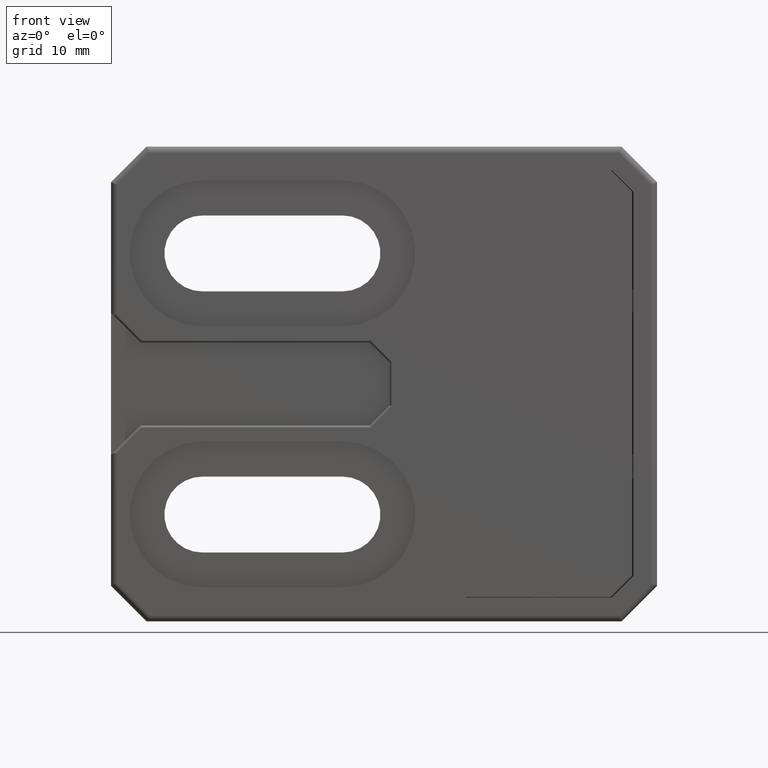
[diagram: clean part render]
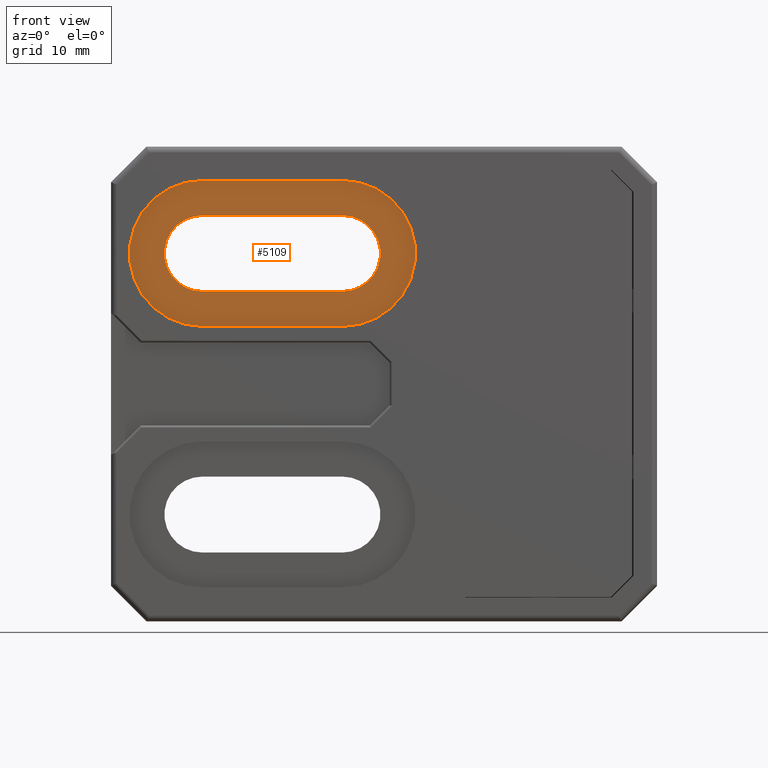
[diagram: same view with one face highlighted and labeled with its STEP entity id]
A machine part, front view. The second image highlights one B-rep face of the part: STEP entity #5109.
In plain terms, the highlighted planar face has unit normal (0, -1, 0).
Its self-contained STEP definition (entity closure, byte-faithful):
#77=FACE_BOUND('',#2077,.T.);
#395=PLANE('',#5425);
#875=LINE('',#8909,#1392);
#879=LINE('',#8918,#1396);
#880=LINE('',#8924,#1397);
#881=LINE('',#8928,#1398);
#1392=VECTOR('',#6456,11.8);
#1396=VECTOR('',#6466,11.8);
#1397=VECTOR('',#6473,11.8);
#1398=VECTOR('',#6476,11.8);
#1773=FACE_OUTER_BOUND('',#2076,.T.);
#2076=EDGE_LOOP('',(#4653,#4654,#4655,#4656));
#2077=EDGE_LOOP('',(#4657,#4658,#4659,#4660));
#2172=CIRCLE('',#5421,6.15);
#2173=CIRCLE('',#5424,6.15);
#2174=CIRCLE('',#5426,3.2);
#2175=CIRCLE('',#5427,3.2);
#2604=VERTEX_POINT('',#8906);
#2605=VERTEX_POINT('',#8908);
#2606=VERTEX_POINT('',#8912);
#2607=VERTEX_POINT('',#8916);
#2608=VERTEX_POINT('',#8922);
#2609=VERTEX_POINT('',#8923);
#2610=VERTEX_POINT('',#8925);
#2611=VERTEX_POINT('',#8927);
#3302=EDGE_CURVE('',#2604,#2605,#875,.T.);
#3305=EDGE_CURVE('',#2606,#2604,#2172,.T.);
#3307=EDGE_CURVE('',#2607,#2606,#879,.T.);
#3308=EDGE_CURVE('',#2605,#2607,#2173,.T.);
#3309=EDGE_CURVE('',#2608,#2609,#880,.T.);
#3310=EDGE_CURVE('',#2610,#2608,#2174,.T.);
#3311=EDGE_CURVE('',#2611,#2610,#881,.T.);
#3312=EDGE_CURVE('',#2609,#2611,#2175,.T.);
#4653=ORIENTED_EDGE('',*,*,#3308,.F.);
#4654=ORIENTED_EDGE('',*,*,#3302,.F.);
#4655=ORIENTED_EDGE('',*,*,#3305,.F.);
#4656=ORIENTED_EDGE('',*,*,#3307,.F.);
#4657=ORIENTED_EDGE('',*,*,#3309,.F.);
#4658=ORIENTED_EDGE('',*,*,#3310,.F.);
#4659=ORIENTED_EDGE('',*,*,#3311,.F.);
#4660=ORIENTED_EDGE('',*,*,#3312,.F.);
#5109=ADVANCED_FACE('',(#1773,#77),#395,.T.);
#5421=AXIS2_PLACEMENT_3D('',#8914,#6461,#6462);
#5424=AXIS2_PLACEMENT_3D('',#8920,#6469,#6470);
#5425=AXIS2_PLACEMENT_3D('',#8921,#6471,#6472);
#5426=AXIS2_PLACEMENT_3D('',#8926,#6474,#6475);
#5427=AXIS2_PLACEMENT_3D('',#8929,#6477,#6478);
#6456=DIRECTION('',(-1.,-1.83697019872103E-16,1.88173394004264E-16));
#6461=DIRECTION('center_axis',(-1.83697019872103E-16,1.,0.));
#6462=DIRECTION('ref_axis',(1.80524069044741E-15,3.31617334987047E-31,1.));
#6466=DIRECTION('',(1.,1.83697019872103E-16,0.));
#6469=DIRECTION('center_axis',(-1.83697019872103E-16,1.,0.));
#6470=DIRECTION('ref_axis',(1.44419255235793E-15,2.65293867989638E-31,-1.));
#6471=DIRECTION('center_axis',(1.11022302462516E-16,-1.,0.));
#6472=DIRECTION('ref_axis',(0.,0.,-1.));
#6473=DIRECTION('',(1.,1.11022302462516E-16,-1.88173394004264E-16));
#6474=DIRECTION('center_axis',(1.11022302462516E-16,-1.,0.));
#6475=DIRECTION('ref_axis',(-3.46944695195362E-16,-3.85185988877449E-32,
-1.));
#6476=DIRECTION('',(-1.,-1.11022302462516E-16,0.));
#6477=DIRECTION('center_axis',(1.11022302462516E-16,-1.,0.));
#6478=DIRECTION('ref_axis',(0.,0.,1.));
#8906=CARTESIAN_POINT('',(19.5,0.500000000000004,4.85));
#8908=CARTESIAN_POINT('',(7.69999999999999,0.500000000000001,4.85));
#8909=CARTESIAN_POINT('',(19.5,0.500000000000004,4.85));
#8912=CARTESIAN_POINT('',(19.5,0.500000000000004,17.15));
#8914=CARTESIAN_POINT('Origin',(19.5,0.500000000000004,11.));
#8916=CARTESIAN_POINT('',(7.7,0.500000000000001,17.15));
#8918=CARTESIAN_POINT('',(7.7,0.500000000000001,17.15));
#8920=CARTESIAN_POINT('Origin',(7.7,0.500000000000001,11.));
#8921=CARTESIAN_POINT('Origin',(13.6,0.500000000000003,11.));
#8922=CARTESIAN_POINT('',(7.7,0.500000000000001,7.8));
#8923=CARTESIAN_POINT('',(19.5,0.500000000000004,7.8));
#8924=CARTESIAN_POINT('',(16.55,0.500000000000003,7.8));
#8925=CARTESIAN_POINT('',(7.7,0.500000000000001,14.2));
#8926=CARTESIAN_POINT('Origin',(7.7,0.500000000000002,11.));
#8927=CARTESIAN_POINT('',(19.5,0.500000000000004,14.2));
#8928=CARTESIAN_POINT('',(10.65,0.500000000000002,14.2));
#8929=CARTESIAN_POINT('Origin',(19.5,0.500000000000004,11.));